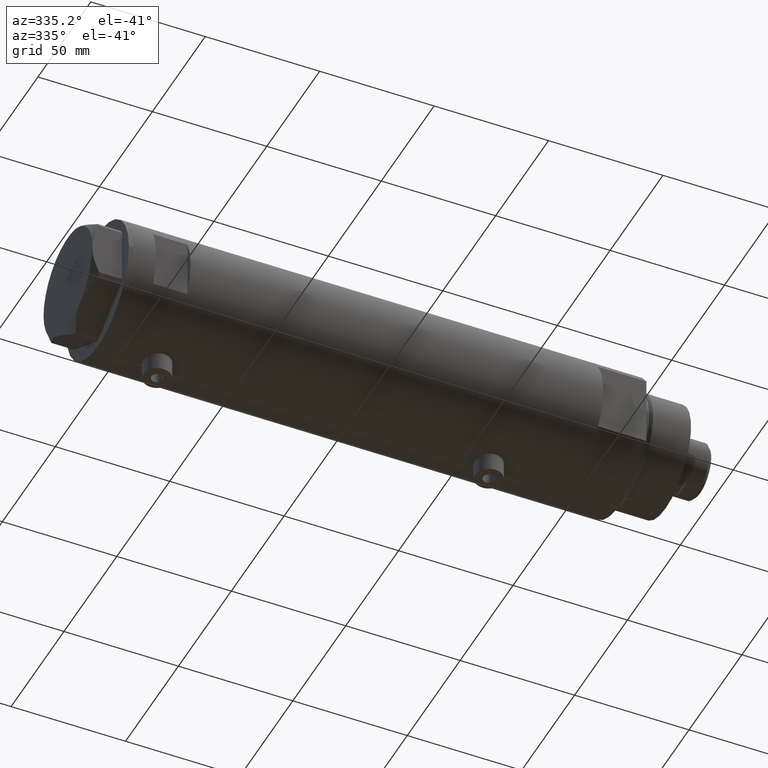
[diagram: clean part render]
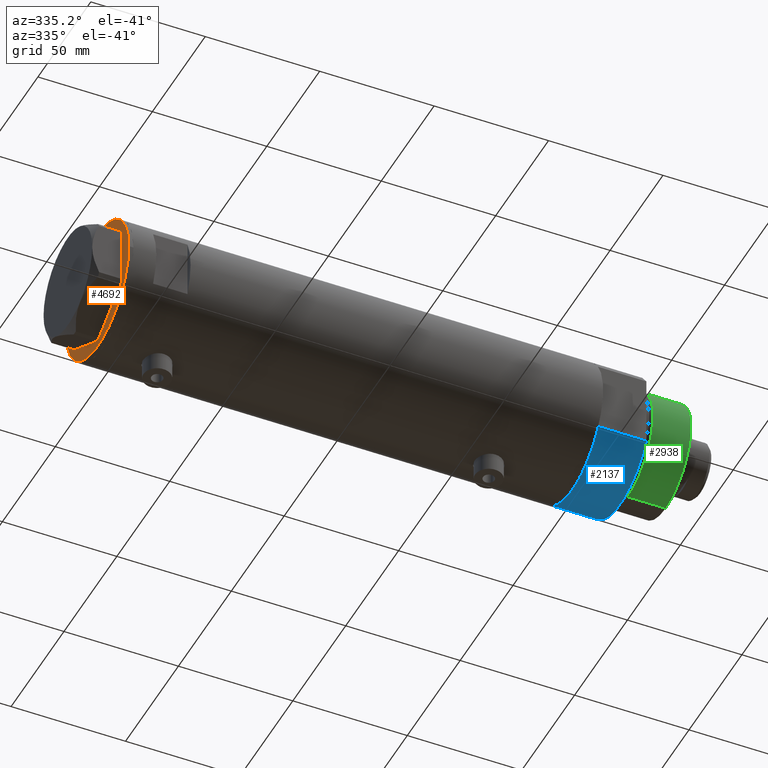
[diagram: same view with three faces highlighted in distinct colors, each labeled with its STEP entity id]
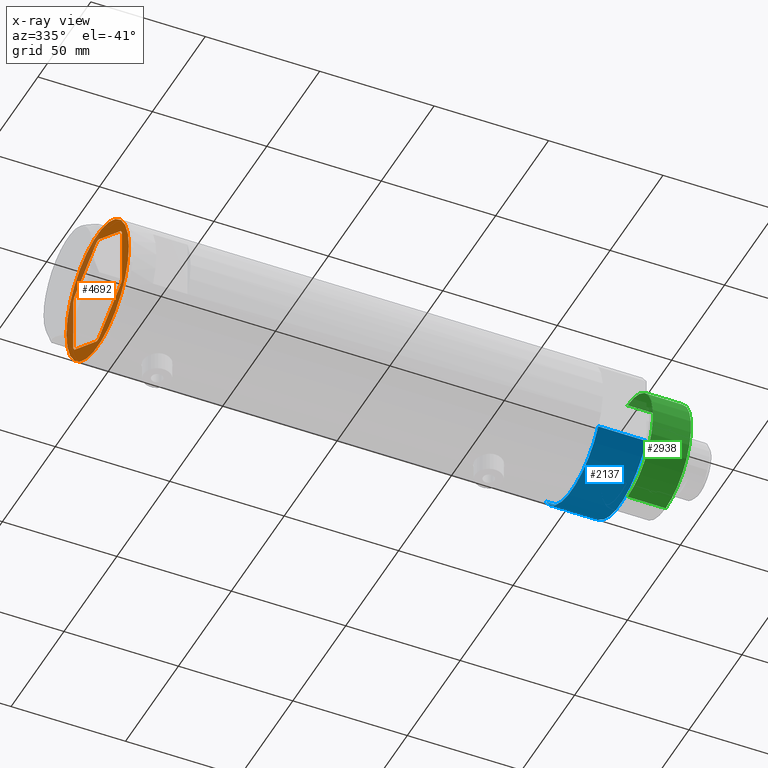
[diagram: x-ray of the same camera — body ghosted, the three highlighted faces saturated]
A machine part, auxiliary view with three faces highlighted in distinct colors.
The next image is the same camera in x-ray (body ghosted, the three faces saturated) — at least one of them is partly hidden behind the body in this view.
Their STEP definitions:

[orange] entity #4692 — the highlighted planar face has unit normal (1, 0, -0).
#3 = ORIENTED_EDGE ( 'NONE', *, *, #1606, .F. ) ;
#14 = VECTOR ( 'NONE', #908, 1000.000000000000000 ) ;
#18 = VERTEX_POINT ( 'NONE', #2363 ) ;
#75 = EDGE_CURVE ( 'NONE', #2440, #241, #888, .T. ) ;
#164 = CARTESIAN_POINT ( 'NONE',  ( 23.00000000000008527, -13.27905619136115867, 0.000000000000000000 ) ) ;
#172 = CARTESIAN_POINT ( 'NONE',  ( -22.99999999999990408, -13.27905619136147841, 0.000000000000000000 ) ) ;
#205 = LINE ( 'NONE', #3459, #4364 ) ;
#240 = LINE ( 'NONE', #4166, #1048 ) ;
#241 = VERTEX_POINT ( 'NONE', #721 ) ;
#262 = FACE_OUTER_BOUND ( 'NONE', #2624, .T. ) ;
#292 = ORIENTED_EDGE ( 'NONE', *, *, #3901, .F. ) ;
#307 = DIRECTION ( 'NONE',  ( -1.000000000000000000, 0.000000000000000000, -0.000000000000000000 ) ) ;
#364 = ORIENTED_EDGE ( 'NONE', *, *, #2621, .F. ) ;
#367 = EDGE_CURVE ( 'NONE', #619, #2381, #4084, .T. ) ;
#420 = VERTEX_POINT ( 'NONE', #1294 ) ;
#445 = DIRECTION ( 'NONE',  ( -1.032024811306395780E-14, 1.000000000000000000, 0.000000000000000000 ) ) ;
#475 = LINE ( 'NONE', #172, #14 ) ;
#476 = EDGE_LOOP ( 'NONE', ( #364, #2665, #3, #1686, #2086, #886, #3765, #3045, #3686, #4728, #292, #1960 ) ) ;
#519 = CARTESIAN_POINT ( 'NONE',  ( -22.51502577388069781, 12.99905619136134050, 0.000000000000000000 ) ) ;
#527 = CARTESIAN_POINT ( 'NONE',  ( 22.03005154776153773, -13.83905619136115561, 0.000000000000000000 ) ) ;
#619 = VERTEX_POINT ( 'NONE', #1555 ) ;
#678 = CARTESIAN_POINT ( 'NONE',  ( 22.99999999999981171, 13.27905619136164184, 0.000000000000000000 ) ) ;
#684 = PLANE ( 'NONE',  #2040 ) ;
#711 = LINE ( 'NONE', #2151, #1424 ) ;
#721 = CARTESIAN_POINT ( 'NONE',  ( -22.99999999999990763, -12.15905619136148985, 0.000000000000000000 ) ) ;
#724 = CARTESIAN_POINT ( 'NONE',  ( 0.000000000000000000, 0.000000000000000000, 0.000000000000000000 ) ) ;
#728 = LINE ( 'NONE', #2187, #749 ) ;
#749 = VECTOR ( 'NONE', #3660, 1000.000000000000000 ) ;
#805 = DIRECTION ( 'NONE',  ( 0.000000000000000000, 0.000000000000000000, -1.000000000000000000 ) ) ;
#835 = EDGE_CURVE ( 'NONE', #18, #420, #475, .T. ) ;
#873 = LINE ( 'NONE', #519, #2935 ) ;
#886 = ORIENTED_EDGE ( 'NONE', *, *, #4091, .T. ) ;
#888 = LINE ( 'NONE', #4218, #933 ) ;
#908 = DIRECTION ( 'NONE',  ( 0.8660254037844415942, -0.4999999999999950595, 0.000000000000000000 ) ) ;
#933 = VECTOR ( 'NONE', #956, 1000.000000000000000 ) ;
#936 = LINE ( 'NONE', #1269, #2708 ) ;
#946 = VECTOR ( 'NONE', #1617, 1000.000000000000000 ) ;
#956 = DIRECTION ( 'NONE',  ( 3.527173405730720141E-15, -1.000000000000000000, 0.000000000000000000 ) ) ;
#981 = CARTESIAN_POINT ( 'NONE',  ( -29.50000000000000355, 3.612708057484692393E-15, 0.000000000000000000 ) ) ;
#985 = VERTEX_POINT ( 'NONE', #3212 ) ;
#1048 = VECTOR ( 'NONE', #2813, 999.9999999999998863 ) ;
#1068 = LINE ( 'NONE', #678, #4660 ) ;
#1091 = CARTESIAN_POINT ( 'NONE',  ( 0.000000000000000000, 0.000000000000000000, 0.000000000000000000 ) ) ;
#1161 = ORIENTED_EDGE ( 'NONE', *, *, #3819, .F. ) ;
#1226 = LINE ( 'NONE', #164, #4652 ) ;
#1259 = AXIS2_PLACEMENT_3D ( 'NONE', #4521, #805, #3736 ) ;
#1269 = CARTESIAN_POINT ( 'NONE',  ( 22.51502577388080795, -12.99905619136115398, 0.000000000000000000 ) ) ;
#1294 = CARTESIAN_POINT ( 'NONE',  ( -0.9699484522383873264, -25.99811238272275205, 0.000000000000000000 ) ) ;
#1333 = VERTEX_POINT ( 'NONE', #1410 ) ;
#1384 = CARTESIAN_POINT ( 'NONE',  ( 22.99999999999982236, 12.15905619136166571, 0.000000000000000000 ) ) ;
#1410 = CARTESIAN_POINT ( 'NONE',  ( -22.03005154776141339, 13.83905619136132792, 0.000000000000000000 ) ) ;
#1424 = VECTOR ( 'NONE', #1790, 1000.000000000000000 ) ;
#1433 = CARTESIAN_POINT ( 'NONE',  ( 29.50000000000000355, 0.000000000000000000, 0.000000000000000000 ) ) ;
#1555 = CARTESIAN_POINT ( 'NONE',  ( 0.9699484522387533669, -25.99811238272273428, 0.000000000000000000 ) ) ;
#1606 = EDGE_CURVE ( 'NONE', #4708, #4386, #1226, .T. ) ;
#1617 = DIRECTION ( 'NONE',  ( -0.5000000000000086597, 0.8660254037844337116, -0.000000000000000000 ) ) ;
#1654 = DIRECTION ( 'NONE',  ( -0.4999999999999915623, -0.8660254037844434816, -0.000000000000000000 ) ) ;
#1686 = ORIENTED_EDGE ( 'NONE', *, *, #3906, .T. ) ;
#1787 = CARTESIAN_POINT ( 'NONE',  ( 23.00000000000007461, -12.15905619136117721, 0.000000000000000000 ) ) ;
#1790 = DIRECTION ( 'NONE',  ( 1.000000000000000000, 3.576939520802682722E-15, -0.000000000000000000 ) ) ;
#1848 = DIRECTION ( 'NONE',  ( -0.8660254037844415942, 0.4999999999999949485, 0.000000000000000000 ) ) ;
#1960 = ORIENTED_EDGE ( 'NONE', *, *, #3398, .T. ) ;
#2040 = AXIS2_PLACEMENT_3D ( 'NONE', #1091, #3641, #307 ) ;
#2086 = ORIENTED_EDGE ( 'NONE', *, *, #367, .F. ) ;
#2151 = CARTESIAN_POINT ( 'NONE',  ( -9.299367564803055752E-14, 25.99811238272273428, 0.000000000000000000 ) ) ;
#2187 = CARTESIAN_POINT ( 'NONE',  ( 1.859873512960652550E-13, -25.99811238272274139, 0.000000000000000000 ) ) ;
#2250 = EDGE_CURVE ( 'NONE', #18, #241, #3042, .T. ) ;
#2315 = CARTESIAN_POINT ( 'NONE',  ( 0.9699484522385886098, 25.99811238272273783, 0.000000000000000000 ) ) ;
#2359 = EDGE_CURVE ( 'NONE', #3302, #3288, #4656, .T. ) ;
#2363 = CARTESIAN_POINT ( 'NONE',  ( -22.03005154776132102, -13.83905619136147536, 0.000000000000000000 ) ) ;
#2381 = VERTEX_POINT ( 'NONE', #527 ) ;
#2440 = VERTEX_POINT ( 'NONE', #4513 ) ;
#2621 = EDGE_CURVE ( 'NONE', #985, #4284, #1068, .T. ) ;
#2624 = EDGE_LOOP ( 'NONE', ( #3753, #1161 ) ) ;
#2665 = ORIENTED_EDGE ( 'NONE', *, *, #4148, .T. ) ;
#2704 = CARTESIAN_POINT ( 'NONE',  ( -0.9699484522385893870, 25.99811238272273073, 0.000000000000000000 ) ) ;
#2708 = VECTOR ( 'NONE', #1654, 1000.000000000000000 ) ;
#2813 = DIRECTION ( 'NONE',  ( 0.5000000000000086597, -0.8660254037844337116, -0.000000000000000000 ) ) ;
#2843 = DIRECTION ( 'NONE',  ( -1.000000000000000000, 0.000000000000000000, 0.000000000000000000 ) ) ;
#2935 = VECTOR ( 'NONE', #4253, 1000.000000000000227 ) ;
#2986 = CARTESIAN_POINT ( 'NONE',  ( 1.854543075583504180E-13, -26.55811238272274366, 0.000000000000000000 ) ) ;
#3042 = LINE ( 'NONE', #4178, #946 ) ;
#3045 = ORIENTED_EDGE ( 'NONE', *, *, #2250, .T. ) ;
#3169 = AXIS2_PLACEMENT_3D ( 'NONE', #724, #3296, #2843 ) ;
#3212 = CARTESIAN_POINT ( 'NONE',  ( 22.03005154776124996, 13.83905619136162635, 0.000000000000000000 ) ) ;
#3288 = VERTEX_POINT ( 'NONE', #981 ) ;
#3296 = DIRECTION ( 'NONE',  ( 0.000000000000000000, 0.000000000000000000, -1.000000000000000000 ) ) ;
#3302 = VERTEX_POINT ( 'NONE', #1433 ) ;
#3398 = EDGE_CURVE ( 'NONE', #4582, #4284, #711, .T. ) ;
#3459 = CARTESIAN_POINT ( 'NONE',  ( 0.000000000000000000, 26.55811238272274366, 0.000000000000000000 ) ) ;
#3570 = EDGE_CURVE ( 'NONE', #2440, #1333, #873, .T. ) ;
#3641 = DIRECTION ( 'NONE',  ( 0.000000000000000000, 0.000000000000000000, -1.000000000000000000 ) ) ;
#3660 = DIRECTION ( 'NONE',  ( -1.000000000000000000, -7.153879041605523216E-15, -0.000000000000000000 ) ) ;
#3686 = ORIENTED_EDGE ( 'NONE', *, *, #75, .F. ) ;
#3732 = CIRCLE ( 'NONE', #1259, 29.50000000000000355 ) ;
#3736 = DIRECTION ( 'NONE',  ( -1.000000000000000000, 0.000000000000000000, 0.000000000000000000 ) ) ;
#3753 = ORIENTED_EDGE ( 'NONE', *, *, #2359, .F. ) ;
#3765 = ORIENTED_EDGE ( 'NONE', *, *, #835, .F. ) ;
#3819 = EDGE_CURVE ( 'NONE', #3288, #3302, #3732, .T. ) ;
#3901 = EDGE_CURVE ( 'NONE', #4582, #1333, #205, .T. ) ;
#3906 = EDGE_CURVE ( 'NONE', #4708, #2381, #936, .T. ) ;
#4032 = FACE_BOUND ( 'NONE', #476, .T. ) ;
#4084 = LINE ( 'NONE', #2986, #4731 ) ;
#4091 = EDGE_CURVE ( 'NONE', #619, #420, #728, .T. ) ;
#4136 = DIRECTION ( 'NONE',  ( 0.8660254037844345998, 0.5000000000000069944, 0.000000000000000000 ) ) ;
#4148 = EDGE_CURVE ( 'NONE', #985, #4386, #240, .T. ) ;
#4166 = CARTESIAN_POINT ( 'NONE',  ( 22.51502577388055926, 12.99905619136160162, 0.000000000000000000 ) ) ;
#4178 = CARTESIAN_POINT ( 'NONE',  ( -22.51502577388055215, -12.99905619136159629, 0.000000000000000000 ) ) ;
#4195 = DIRECTION ( 'NONE',  ( -0.8660254037844380415, -0.5000000000000008882, 0.000000000000000000 ) ) ;
#4218 = CARTESIAN_POINT ( 'NONE',  ( -22.99999999999999645, 13.27905619136132032, 0.000000000000000000 ) ) ;
#4253 = DIRECTION ( 'NONE',  ( 0.4999999999999986677, 0.8660254037844392627, -0.000000000000000000 ) ) ;
#4284 = VERTEX_POINT ( 'NONE', #2315 ) ;
#4364 = VECTOR ( 'NONE', #4195, 1000.000000000000227 ) ;
#4386 = VERTEX_POINT ( 'NONE', #1384 ) ;
#4513 = CARTESIAN_POINT ( 'NONE',  ( -22.99999999999999289, 12.15905619136131754, 0.000000000000000000 ) ) ;
#4521 = CARTESIAN_POINT ( 'NONE',  ( 0.000000000000000000, 0.000000000000000000, 0.000000000000000000 ) ) ;
#4582 = VERTEX_POINT ( 'NONE', #2704 ) ;
#4652 = VECTOR ( 'NONE', #445, 1000.000000000000000 ) ;
#4656 = CIRCLE ( 'NONE', #3169, 29.50000000000000355 ) ;
#4660 = VECTOR ( 'NONE', #1848, 999.9999999999998863 ) ;
#4692 = ADVANCED_FACE ( 'NONE', ( #4032, #262 ), #684, .F. ) ;
#4708 = VERTEX_POINT ( 'NONE', #1787 ) ;
#4728 = ORIENTED_EDGE ( 'NONE', *, *, #3570, .T. ) ;
#4731 = VECTOR ( 'NONE', #4136, 999.9999999999998863 ) ;

[blue] entity #2137 — the highlighted cylindrical surface (partial cylindrical patch) has radius 29.5 mm, axis along (-1, -0, 0).
#5 = LINE ( 'NONE', #31, #3335 ) ;
#31 = CARTESIAN_POINT ( 'NONE',  ( 15.66045976336583401, -25.00000000000000000, 0.000000000000000000 ) ) ;
#366 = CARTESIAN_POINT ( 'NONE',  ( 15.66045976336583045, 24.99999999999999645, 20.99999999999999645 ) ) ;
#490 = DIRECTION ( 'NONE',  ( -0.000000000000000000, -0.000000000000000000, -1.000000000000000000 ) ) ;
#515 = VERTEX_POINT ( 'NONE', #3483 ) ;
#657 = CIRCLE ( 'NONE', #1820, 29.50000000000000355 ) ;
#807 = AXIS2_PLACEMENT_3D ( 'NONE', #1223, #490, #1970 ) ;
#945 = VERTEX_POINT ( 'NONE', #2179 ) ;
#971 = AXIS2_PLACEMENT_3D ( 'NONE', #2551, #1793, #2835 ) ;
#1065 = ORIENTED_EDGE ( 'NONE', *, *, #2536, .T. ) ;
#1199 = LINE ( 'NONE', #3725, #1724 ) ;
#1223 = CARTESIAN_POINT ( 'NONE',  ( 0.000000000000000000, 0.000000000000000000, 21.00000000000000000 ) ) ;
#1252 = CARTESIAN_POINT ( 'NONE',  ( 15.66045976336583401, -25.00000000000000000, 0.000000000000000000 ) ) ;
#1464 = EDGE_CURVE ( 'NONE', #4490, #945, #5, .T. ) ;
#1547 = ORIENTED_EDGE ( 'NONE', *, *, #4326, .F. ) ;
#1724 = VECTOR ( 'NONE', #4469, 1000.000000000000000 ) ;
#1793 = DIRECTION ( 'NONE',  ( 0.000000000000000000, 0.000000000000000000, 1.000000000000000000 ) ) ;
#1820 = AXIS2_PLACEMENT_3D ( 'NONE', #4776, #3986, #2521 ) ;
#1952 = VERTEX_POINT ( 'NONE', #366 ) ;
#1970 = DIRECTION ( 'NONE',  ( -1.000000000000000000, 0.000000000000000000, 0.000000000000000000 ) ) ;
#2137 = ADVANCED_FACE ( 'NONE', ( #4618 ), #4595, .T. ) ;
#2179 = CARTESIAN_POINT ( 'NONE',  ( 15.66045976336583045, -25.00000000000000000, 21.00000000000000355 ) ) ;
#2303 = EDGE_LOOP ( 'NONE', ( #1547, #4306, #4522, #1065 ) ) ;
#2521 = DIRECTION ( 'NONE',  ( 1.000000000000000000, 0.000000000000000000, 0.000000000000000000 ) ) ;
#2536 = EDGE_CURVE ( 'NONE', #515, #1952, #1199, .T. ) ;
#2551 = CARTESIAN_POINT ( 'NONE',  ( 0.000000000000000000, 0.000000000000000000, 21.00000000000000000 ) ) ;
#2575 = DIRECTION ( 'NONE',  ( -0.000000000000000000, -0.000000000000000000, 1.000000000000000000 ) ) ;
#2835 = DIRECTION ( 'NONE',  ( 1.000000000000000000, 0.000000000000000000, 0.000000000000000000 ) ) ;
#3021 = CIRCLE ( 'NONE', #971, 29.50000000000000355 ) ;
#3335 = VECTOR ( 'NONE', #2575, 1000.000000000000000 ) ;
#3483 = CARTESIAN_POINT ( 'NONE',  ( 15.66045976336582690, 25.00000000000000000, 0.000000000000000000 ) ) ;
#3725 = CARTESIAN_POINT ( 'NONE',  ( 15.66045976336583401, 25.00000000000000000, 0.000000000000000000 ) ) ;
#3986 = DIRECTION ( 'NONE',  ( 0.000000000000000000, 0.000000000000000000, 1.000000000000000000 ) ) ;
#4306 = ORIENTED_EDGE ( 'NONE', *, *, #1464, .F. ) ;
#4326 = EDGE_CURVE ( 'NONE', #945, #1952, #3021, .T. ) ;
#4469 = DIRECTION ( 'NONE',  ( -0.000000000000000000, -0.000000000000000000, 1.000000000000000000 ) ) ;
#4490 = VERTEX_POINT ( 'NONE', #1252 ) ;
#4522 = ORIENTED_EDGE ( 'NONE', *, *, #4668, .T. ) ;
#4595 = CYLINDRICAL_SURFACE ( 'NONE', #807, 29.50000000000000355 ) ;
#4618 = FACE_OUTER_BOUND ( 'NONE', #2303, .T. ) ;
#4668 = EDGE_CURVE ( 'NONE', #4490, #515, #657, .T. ) ;
#4776 = CARTESIAN_POINT ( 'NONE',  ( 0.000000000000000000, 0.000000000000000000, 0.000000000000000000 ) ) ;

[green] entity #2938 — the highlighted cylindrical surface (partial cylindrical patch) has radius 24 mm, axis along (-1, -0, 0).
#152 = FACE_OUTER_BOUND ( 'NONE', #1115, .T. ) ;
#354 = CARTESIAN_POINT ( 'NONE',  ( -24.00000000000000355, 0.000000000000000000, 41.00000000000000000 ) ) ;
#718 = VECTOR ( 'NONE', #3187, 1000.000000000000000 ) ;
#738 = VERTEX_POINT ( 'NONE', #1064 ) ;
#957 = EDGE_CURVE ( 'NONE', #738, #2831, #4576, .T. ) ;
#1030 = EDGE_CURVE ( 'NONE', #3572, #2831, #3917, .T. ) ;
#1064 = CARTESIAN_POINT ( 'NONE',  ( -24.00000000000000355, 0.000000000000000000, 24.37384048104054557 ) ) ;
#1115 = EDGE_LOOP ( 'NONE', ( #2557, #1709, #2626, #1564 ) ) ;
#1322 = VECTOR ( 'NONE', #3640, 1000.000000000000000 ) ;
#1453 = DIRECTION ( 'NONE',  ( 0.000000000000000000, 0.000000000000000000, 1.000000000000000000 ) ) ;
#1564 = ORIENTED_EDGE ( 'NONE', *, *, #957, .T. ) ;
#1709 = ORIENTED_EDGE ( 'NONE', *, *, #1868, .F. ) ;
#1818 = EDGE_CURVE ( 'NONE', #3965, #738, #3047, .T. ) ;
#1868 = EDGE_CURVE ( 'NONE', #3965, #3572, #4504, .T. ) ;
#1927 = AXIS2_PLACEMENT_3D ( 'NONE', #3994, #2818, #4706 ) ;
#2454 = CARTESIAN_POINT ( 'NONE',  ( 24.00000000000000355, 2.939152317953648289E-15, 41.00000000000000000 ) ) ;
#2557 = ORIENTED_EDGE ( 'NONE', *, *, #1030, .F. ) ;
#2626 = ORIENTED_EDGE ( 'NONE', *, *, #1818, .T. ) ;
#2745 = CYLINDRICAL_SURFACE ( 'NONE', #4358, 24.00000000000000355 ) ;
#2768 = DIRECTION ( 'NONE',  ( -1.000000000000000000, 0.000000000000000000, 0.000000000000000000 ) ) ;
#2818 = DIRECTION ( 'NONE',  ( -0.000000000000000000, -0.000000000000000000, 1.000000000000000000 ) ) ;
#2831 = VERTEX_POINT ( 'NONE', #4050 ) ;
#2938 = ADVANCED_FACE ( 'NONE', ( #152 ), #2745, .T. ) ;
#3047 = LINE ( 'NONE', #354, #1322 ) ;
#3187 = DIRECTION ( 'NONE',  ( -0.000000000000000000, -0.000000000000000000, -1.000000000000000000 ) ) ;
#3279 = CARTESIAN_POINT ( 'NONE',  ( 0.000000000000000000, 0.000000000000000000, 41.00000000000000000 ) ) ;
#3572 = VERTEX_POINT ( 'NONE', #3832 ) ;
#3640 = DIRECTION ( 'NONE',  ( -0.000000000000000000, -0.000000000000000000, -1.000000000000000000 ) ) ;
#3832 = CARTESIAN_POINT ( 'NONE',  ( 24.00000000000000355, 2.939152317953648289E-15, 41.00000000000000000 ) ) ;
#3903 = CARTESIAN_POINT ( 'NONE',  ( -24.00000000000000355, 0.000000000000000000, 41.00000000000000000 ) ) ;
#3917 = LINE ( 'NONE', #2454, #718 ) ;
#3922 = DIRECTION ( 'NONE',  ( -0.000000000000000000, -0.000000000000000000, -1.000000000000000000 ) ) ;
#3965 = VERTEX_POINT ( 'NONE', #3903 ) ;
#3994 = CARTESIAN_POINT ( 'NONE',  ( 0.000000000000000000, 0.000000000000000000, 24.37384048104054557 ) ) ;
#4050 = CARTESIAN_POINT ( 'NONE',  ( 24.00000000000000355, 2.939152317953648289E-15, 24.37384048104054557 ) ) ;
#4270 = CARTESIAN_POINT ( 'NONE',  ( 0.000000000000000000, 0.000000000000000000, 41.00000000000000000 ) ) ;
#4358 = AXIS2_PLACEMENT_3D ( 'NONE', #4270, #3922, #2768 ) ;
#4407 = DIRECTION ( 'NONE',  ( 1.000000000000000000, 0.000000000000000000, 0.000000000000000000 ) ) ;
#4504 = CIRCLE ( 'NONE', #4744, 24.00000000000000355 ) ;
#4576 = CIRCLE ( 'NONE', #1927, 24.00000000000000355 ) ;
#4706 = DIRECTION ( 'NONE',  ( 1.000000000000000000, 0.000000000000000000, 0.000000000000000000 ) ) ;
#4744 = AXIS2_PLACEMENT_3D ( 'NONE', #3279, #1453, #4407 ) ;